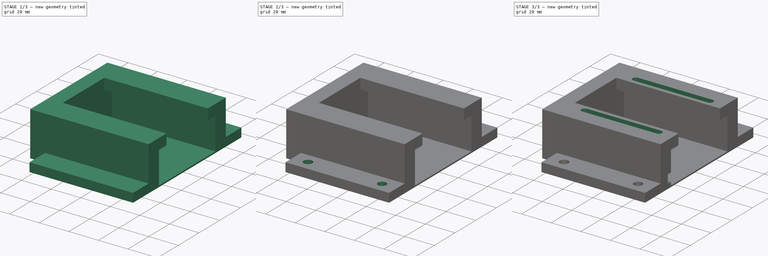
[diagram: build sequence overview — one tinted view per stage of 3, left to right]
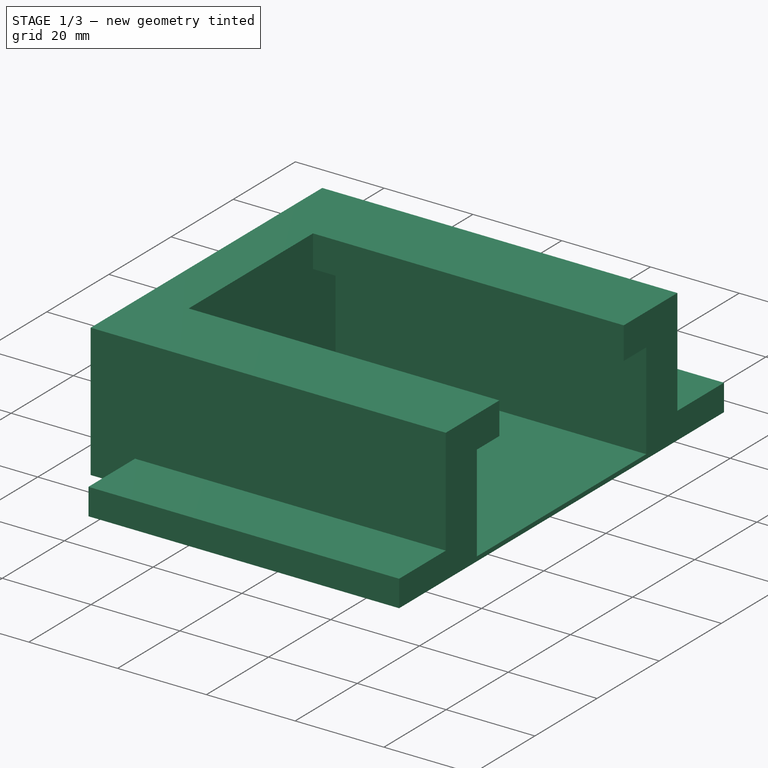
[diagram: stage 1 of 3 — iso view after this stage's code; geometry added in this stage tinted green]
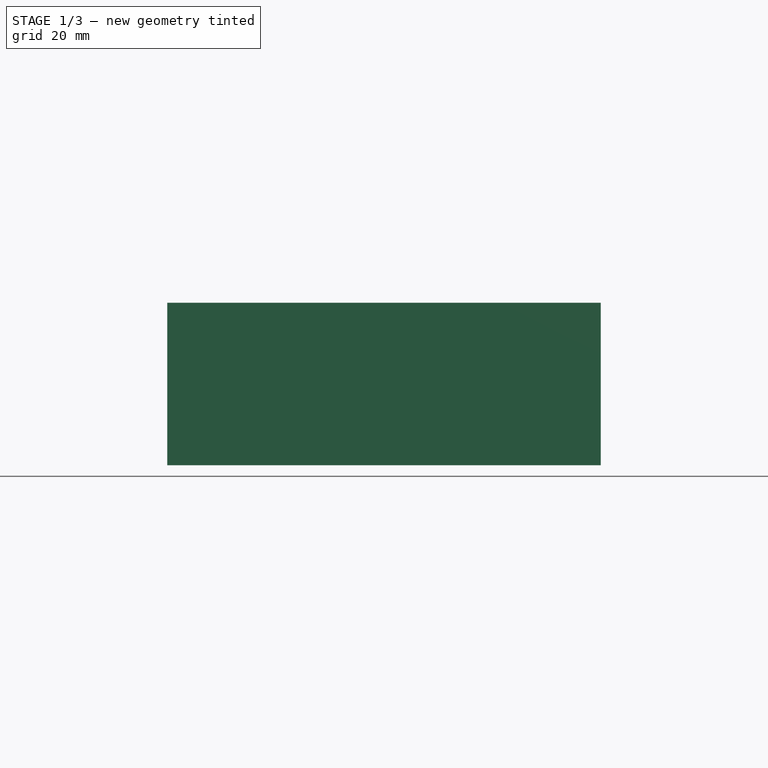
[diagram: stage 1 of 3 — front view after this stage's code; geometry added in this stage tinted green]
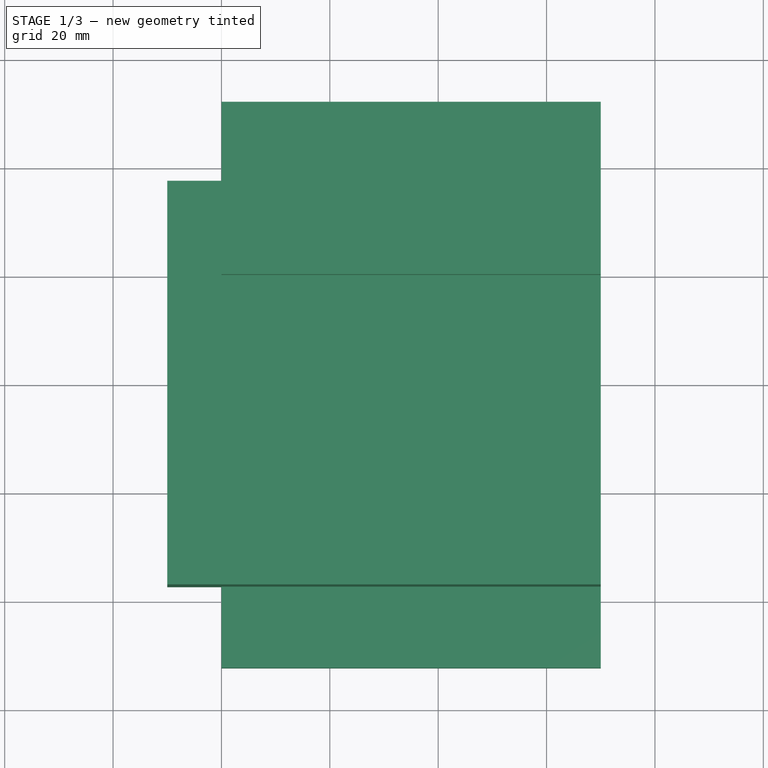
[diagram: stage 1 of 3 — top view after this stage's code; geometry added in this stage tinted green]
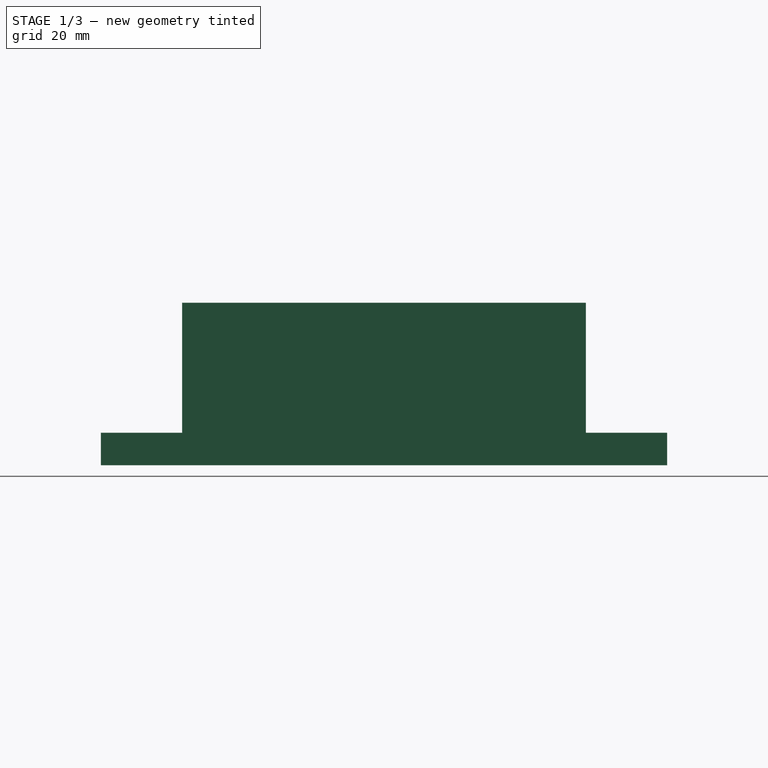
[diagram: stage 1 of 3 — right view after this stage's code; geometry added in this stage tinted green]
FCSTD DOCUMENT  (FreeCAD 1.0R39319 (Git))
Label: servo_holder
License: All rights reserved
LicenseURL: https://en.wikipedia.org/wiki/All_rights_reserved
objects: Sketcher::SketchObject×7, PartDesign::Pocket×4, PartDesign::Pad×2, Spreadsheet::Sheet×1, App::DocumentObjectGroup×1, PartDesign::Body×1
note: 33 computed .brp shape members not serialized (recipe doc carries the construction recipe); baked Part::Feature solids carry a one-line shape summary decoded from their .brp

FEATURE [Spreadsheet::Sheet] Spreadsheet  label="p"
  cells = A1='trough_d; B1(trough_d)==40 + 2 * B7; A2='trough_length; B2(trough_length)=70; A3='outer_flare_h; B3(outer_flare_h)=5; A4='inner_flare_h; B4(inner_flare_h)==B5 - B7; A5='total_h; B5(total_h)=29; A6='outer_flare_d; B6(outer_flare_d)=15; A7='inner_flare_d; B7(inner_flare_d)==(54.5 - 40) / 2; A8='hole_diam; B8(hole_diam)=4; A9='hole_spacing; B9(hole_spacing)=10; A10='wall_d; B10(wall_d)=10; A11='base_d; B11(base_d)=1; A12='rear_wall_d; B12(rear_wall_d)=10; A13='mount_clearance_diam; B13(mount_clearance_diam)=5; A14='slot_d; B14(slot_d)=49.5; A15='slot_width; B15(slot_width)=4.35; A16='wire_slot_d; B16(wire_slot_d)=3; A17='wire_slot_h; B17(wire_slot_h)=6; A18='wire_slot_offset; B18(wire_slot_offset)=2
FEATURE [Sketcher::SketchObject] Sketch
  ArcFitTolerance = 1e-06
  AttachmentSupport = -> [YZ_Plane]
  FullyConstrained = true
  MakeInternals = false
  MapMode = 5
  Placement = pos=(0,0,0) rot=(0.57735,0.57735,0.57735;2.0944rad)
  expr: Constraints[11] = <<p>>.wall_d
  expr: Constraints[12] = <<p>>.wall_d + <<p>>.inner_flare_d
  expr: Constraints[13] = <<p>>.wall_d + <<p>>.outer_flare_d
  expr: Constraints[14] = <<p>>.inner_flare_h
  expr: Constraints[15] = <<p>>.total_h
  expr: Constraints[16] = <<p>>.outer_flare_h
  expr: Constraints[18] = <<p>>.trough_d / 2
  expr: Constraints[30] = <<p>>.wall_d
  expr: Constraints[31] = <<p>>.outer_flare_d
  expr: Constraints[32] = <<p>>.outer_flare_h
  expr: Constraints[33] = <<p>>.inner_flare_h
  expr: Constraints[34] = <<p>>.inner_flare_d + <<p>>.wall_d
  expr: Constraints[35] = <<p>>.total_h
  expr: Constraints[37] = <<p>>.trough_d / 2
  sketch-geometry (20):
    g0: LineSegment StartX=-20 StartY=29 StartZ=0 EndX=-37.25 EndY=29 EndZ=0
    g1: LineSegment StartX=-37.25 StartY=29 StartZ=0 EndX=-37.25 EndY=5 EndZ=0
    g2: LineSegment StartX=-37.25 StartY=5 StartZ=0 EndX=-52.25 EndY=5 EndZ=0
    g3: LineSegment StartX=-52.25 StartY=5 StartZ=0 EndX=-52.25 EndY=0 EndZ=0
    g4: LineSegment StartX=-52.25 StartY=0 StartZ=0 EndX=-27.25 EndY=0 EndZ=0
    g5: LineSegment StartX=-27.25 StartY=0 StartZ=0 EndX=-27.25 EndY=21.75 EndZ=0
    g6: LineSegment StartX=52.25 StartY=0 StartZ=0 EndX=52.25 EndY=5 EndZ=0
    g7: LineSegment StartX=52.25 StartY=5 StartZ=0 EndX=37.25 EndY=5 EndZ=0
    g8: LineSegment StartX=37.25 StartY=5 StartZ=0 EndX=37.25 EndY=29 EndZ=0
    g9: LineSegment StartX=37.25 StartY=29 StartZ=0 EndX=20 EndY=29 EndZ=0
    g10: LineSegment StartX=27.25 StartY=21.75 StartZ=0 EndX=27.25 EndY=0 EndZ=0
    g11: LineSegment StartX=27.25 StartY=0 StartZ=0 EndX=52.25 EndY=0 EndZ=0
    g12: LineSegment StartX=-52.25 StartY=0 StartZ=0 EndX=-52.25 EndY=-1 EndZ=0
    g13: LineSegment StartX=-52.25 StartY=-1 StartZ=0 EndX=52.25 EndY=-1 EndZ=0
    g14: LineSegment StartX=52.25 StartY=-1 StartZ=0 EndX=52.25 EndY=0 EndZ=0
    g15: LineSegment StartX=52.25 StartY=0 StartZ=0 EndX=-52.25 EndY=0 EndZ=0
    g16: LineSegment StartX=-20 StartY=29 StartZ=0 EndX=-20 EndY=21.75 EndZ=0
    g17: LineSegment StartX=-20 StartY=21.75 StartZ=0 EndX=-27.25 EndY=21.75 EndZ=0
    g18: LineSegment StartX=20 StartY=29 StartZ=0 EndX=20 EndY=21.75 EndZ=0
    g19: LineSegment StartX=20 StartY=21.75 StartZ=0 EndX=27.25 EndY=21.75 EndZ=0
  constraints (59):
    c: Horizontal(g0)
    c: Coincident(g0,g1)
    c: Vertical(g1)
    c: Coincident(g1,g2)
    c: Horizontal(g2)
    c: Coincident(g2,g3)
    c: Vertical(g3)
    c: Coincident(g3,g4)
    c: Horizontal(g4)
    c: Coincident(g4,g5)
    c: Vertical(g5)
    c: DistanceX(g1,g5) = 10
    c: DistanceX(g0,g0) = 17.25
    c: DistanceX(g4,g4) = 25
    c: DistanceY(g5,g5) = 21.75
    c: DistanceY(g3,g0) = 29
    c: DistanceY(g3,g2) = 5
    c: DistanceY(g4,g-1) = 0
    c: DistanceX(g4,g-1) = 27.25
    c: Vertical(g6)
    c: Coincident(g6,g7)
    c: Horizontal(g7)
    c: Coincident(g7,g8)
    c: Vertical(g8)
    c: Coincident(g8,g9)
    c: Horizontal(g9)
    c: Vertical(g10)
    c: Coincident(g10,g11)
    c: Coincident(g11,g6)
    c: Horizontal(g11)
    c: DistanceX(g10,g7) = 10
    c: DistanceX(g7,g7) = 15
    c: DistanceY(g6,g6) = 5
    c: DistanceY(g10,g10) = 21.75
    c: DistanceX(g9,g9) = 17.25
    c: DistanceY(g6,g8) = 29
    c: DistanceY(g-1,g10) = 0
    c: DistanceX(g-1,g10) = 27.25
    c: Coincident(g12,g13)
    c: Coincident(g13,g14)
    c: Coincident(g14,g15)
    c: Coincident(g15,g12)
    c: Vertical(g12)
    c: Vertical(g14)
    c: Horizontal(g13)
    c: Horizontal(g15)
    c: Coincident(g12,g3)
    c: DistanceX(g13,g6) = 0
    c: DistanceY(g13,g6) = 1
    c: Coincident(g0,g16)
    c: Vertical(g16)
    c: Coincident(g17,g16)
    c: Coincident(g17,g5)
    c: Horizontal(g17)
    c: Coincident(g9,g18)
    c: Vertical(g18)
    c: Coincident(g18,g19)
    c: Coincident(g19,g10)
    c: Horizontal(g19)
FEATURE [PartDesign::Pad] Pad
  Direction = (1,0,0)
  Length = 70
  Length2 = 10
  Placement = pos=(0,0,0) rot=(1,1,1;2.0944rad)
  Profile = -> Sketch
  ReferenceAxis = -> Sketch [N_Axis]
  Refine = true
  Suppressed = false
  Type = 0
  expr: Length = <<p>>.trough_length
FEATURE [Sketcher::SketchObject] Sketch001
  ArcFitTolerance = 1e-06
  AttachmentSupport = -> [YZ_Plane]
  FullyConstrained = true
  MakeInternals = false
  MapMode = 5
  Placement = pos=(0,0,0) rot=(0.57735,0.57735,0.57735;2.0944rad)
  expr: Constraints[10] = <<p>>.trough_d + 2 * <<p>>.wall_d
  expr: Constraints[11] = <<p>>.total_h + <<p>>.base_d
  expr: Constraints[8] = -<<p>>.base_d
  expr: Constraints[9] = <<p>>.trough_d / 2 + <<p>>.wall_d
  sketch-geometry (4):
    g0: LineSegment StartX=-37.25 StartY=29 StartZ=0 EndX=-37.25 EndY=-1 EndZ=0
    g1: LineSegment StartX=-37.25 StartY=-1 StartZ=0 EndX=37.25 EndY=-1 EndZ=0
    g2: LineSegment StartX=37.25 StartY=-1 StartZ=0 EndX=37.25 EndY=29 EndZ=0
    g3: LineSegment StartX=37.25 StartY=29 StartZ=0 EndX=-37.25 EndY=29 EndZ=0
  constraints (12):
    c: Coincident(g0,g1)
    c: Coincident(g1,g2)
    c: Coincident(g2,g3)
    c: Coincident(g3,g0)
    c: Vertical(g0)
    c: Vertical(g2)
    c: Horizontal(g1)
    c: Horizontal(g3)
    c: DistanceY(g-1,g1) = -1
    c: DistanceX(g-1,g1) = 37.25
    c: DistanceX(g3,g3) = 74.5
    c: DistanceY(g0,g0) = 30
FEATURE [PartDesign::Pad] Pad001
  BaseFeature = -> Pad
  Direction = (-1,0,0)
  Length = 10
  Length2 = 10
  Placement = pos=(0,0,0) rot=(1,1,1;2.0944rad)
  Profile = -> Sketch001
  ReferenceAxis = -> Sketch001 [N_Axis]
  Refine = true
  Suppressed = false
  Type = 0
  UseCustomVector = true
  expr: Length = <<p>>.rear_wall_d
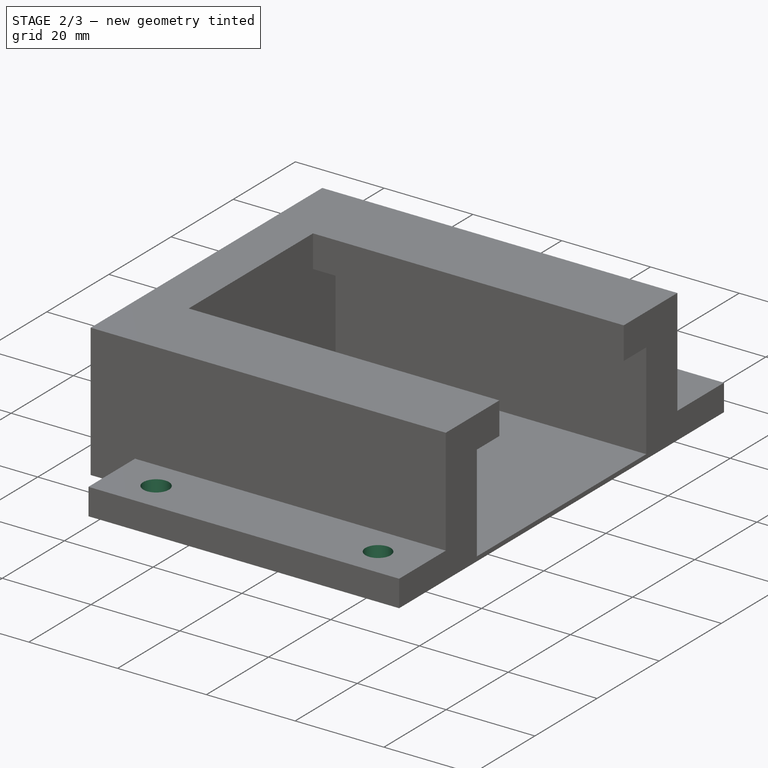
[diagram: stage 2 of 3 — iso view after this stage's code; geometry added in this stage tinted green]
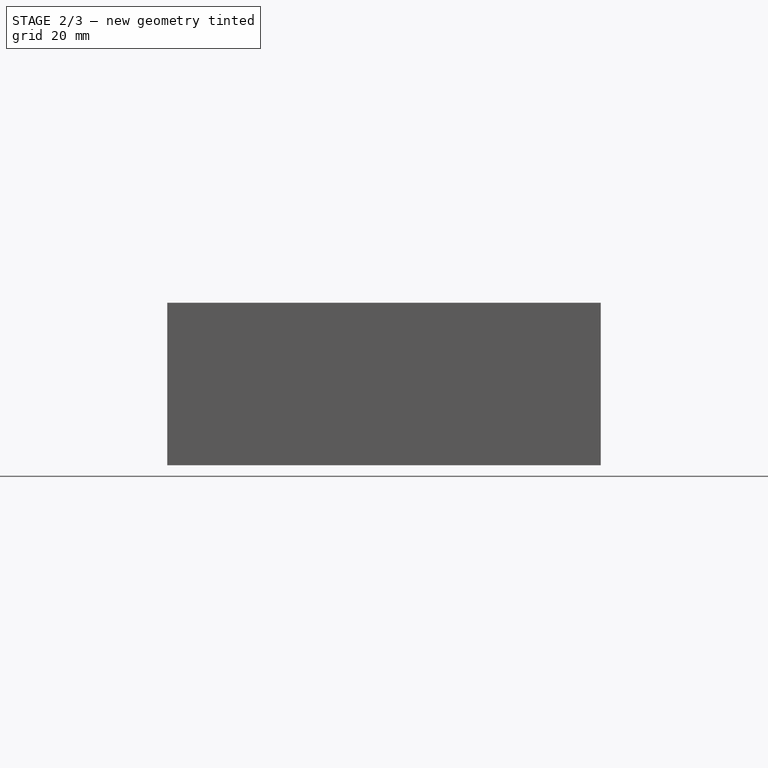
[diagram: stage 2 of 3 — front view after this stage's code; geometry added in this stage tinted green]
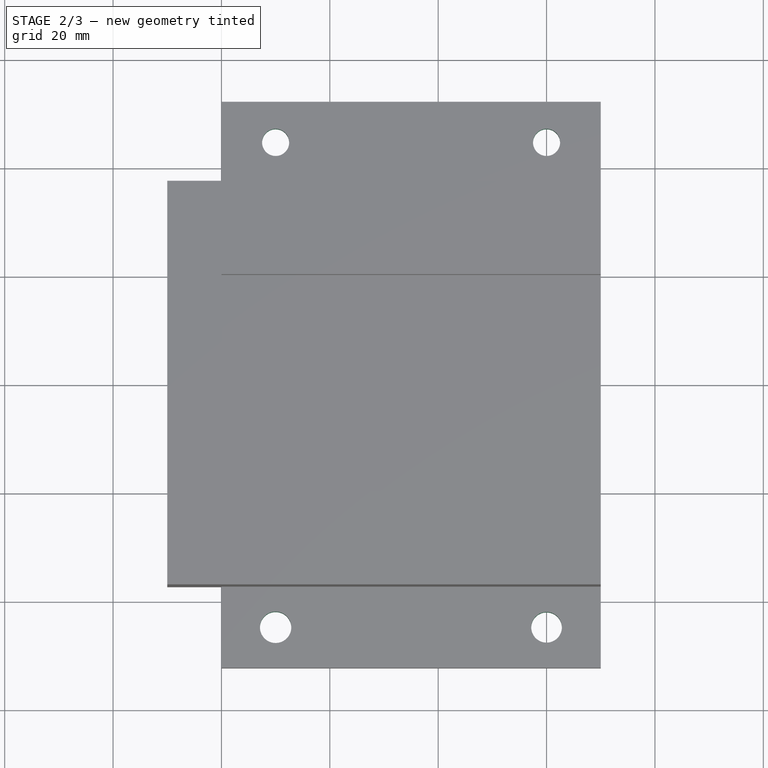
[diagram: stage 2 of 3 — top view after this stage's code; geometry added in this stage tinted green]
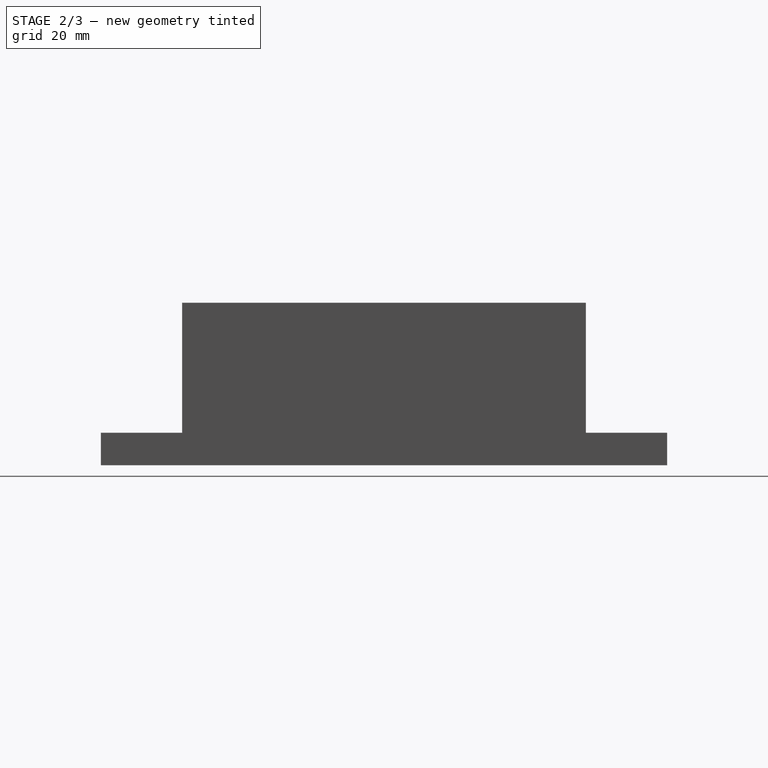
[diagram: stage 2 of 3 — right view after this stage's code; geometry added in this stage tinted green]
FEATURE [App::DocumentObjectGroup] Measurements
FEATURE [Sketcher::SketchObject] Sketch002
  ArcFitTolerance = 1e-06
  AttachmentSupport = -> [Pad001]
  FullyConstrained = true
  MakeInternals = false
  MapMode = 5
  Placement = pos=(-2.2e-15,2.2e-15,5) rot=(0,0,-1;1.5708rad)
FEATURE [Sketcher::SketchObject] Sketch003
  ArcFitTolerance = 1e-06
  AttachmentSupport = -> [Pad001]
  FullyConstrained = true
  MakeInternals = false
  MapMode = 5
  Placement = pos=(-2.2e-15,2.2e-15,5) rot=(0,0,-1;1.5708rad)
  expr: Constraints[0] = <<p>>.trough_d / 2 + <<p>>.wall_d + <<p>>.outer_flare_d / 2
  expr: Constraints[2] = 10
  expr: Constraints[3] = <<p>>.trough_length - 20
  expr: Constraints[4] = <<p>>.mount_clearance_diam
  expr: Constraints[5] = <<p>>.mount_clearance_diam
  sketch-geometry (2):
    g0: Circle CenterX=-44.75 CenterY=60 CenterZ=0 NormalX=0 NormalY=0 NormalZ=1 AngleXU=0 Radius=2.5
    g1: Circle CenterX=-44.75 CenterY=10 CenterZ=0 NormalX=0 NormalY=0 NormalZ=1 AngleXU=0 Radius=2.5
  constraints (6):
    c: DistanceX(g0,g-1) = 44.75
    c: DistanceX(g1,g0) = 0
    c: DistanceY(g-1,g1) = 10
    c: DistanceY(g1,g0) = 50
    c: Diameter(g0) = 5
    c: Diameter(g1) = 5
FEATURE [PartDesign::Pocket] Pocket
  BaseFeature = -> Pad001
  Direction = (0,0,-1)
  Length = 6
  Length2 = 5
  Placement = pos=(0,0,0) rot=(1,1,1;2.0944rad)
  Profile = -> Sketch003
  ReferenceAxis = -> Sketch003 [N_Axis]
  Refine = true
  Suppressed = false
  Type = 0
  expr: Length = <<p>>.outer_flare_h + 1
FEATURE [Sketcher::SketchObject] Sketch004
  ArcFitTolerance = 1e-06
  AttachmentSupport = -> [Pocket]
  FullyConstrained = false
  MakeInternals = false
  MapMode = 5
  Placement = pos=(-3.9e-15,2.8e-15,5) rot=(0,0,-1;1.5708rad)
  expr: Constraints[1] = <<p>>.trough_d / 2 + <<p>>.wall_d + <<p>>.outer_flare_d / 2
  expr: Constraints[3] = <<p>>.trough_length - 20
  sketch-geometry (2):
    g0: Circle CenterX=44.75 CenterY=60 CenterZ=0 NormalX=0 NormalY=0 NormalZ=1 AngleXU=0 Radius=2.82626
    g1: Circle CenterX=44.75 CenterY=10 CenterZ=0 NormalX=0 NormalY=0 NormalZ=1 AngleXU=0 Radius=2.89198
  constraints (4):
    c: DistanceX(g0,g1) = 0
    c: DistanceX(g-1,g1) = 44.75
    c: DistanceY(g-1,g1) = 10
    c: DistanceY(g1,g0) = 50
FEATURE [PartDesign::Pocket] Pocket001
  BaseFeature = -> Pocket
  Direction = (0,0,-1)
  Length = 6
  Length2 = 5
  Placement = pos=(0,0,0) rot=(1,1,1;2.0944rad)
  Profile = -> Sketch004
  ReferenceAxis = -> Sketch004 [N_Axis]
  Refine = true
  Suppressed = false
  Type = 0
  expr: Length = <<p>>.outer_flare_h + 1
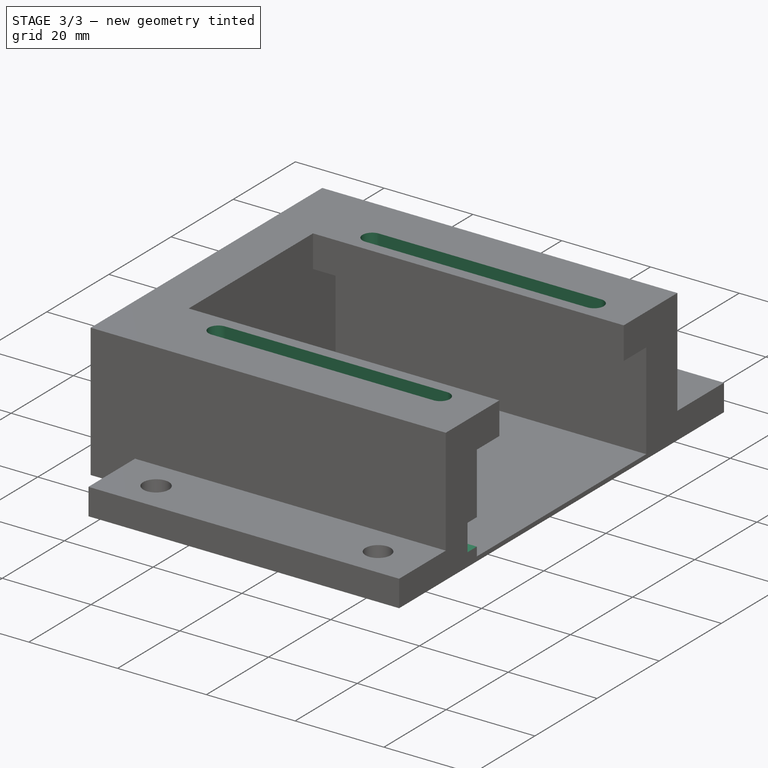
[diagram: stage 3 of 3 — iso view after this stage's code; geometry added in this stage tinted green]
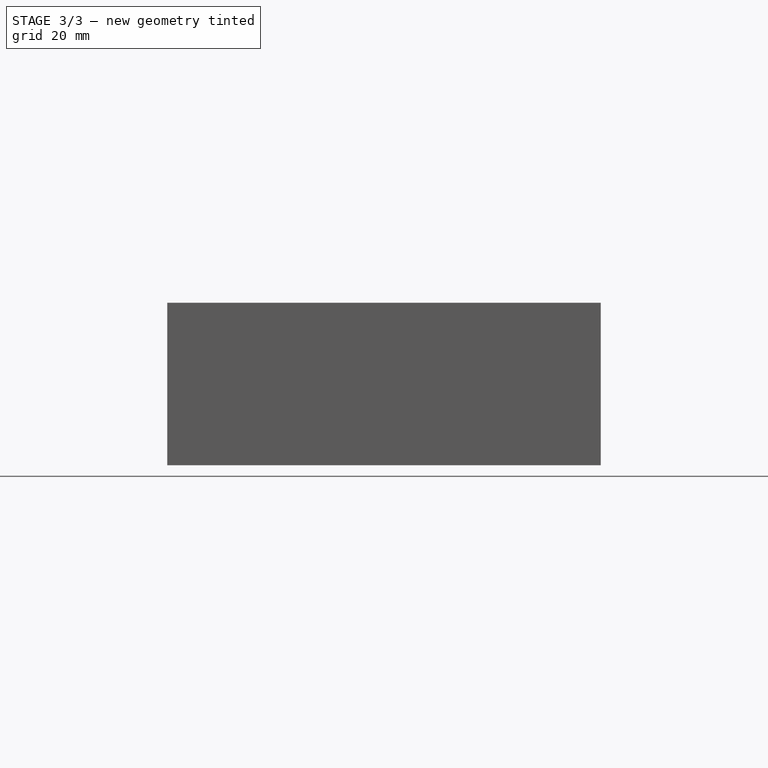
[diagram: stage 3 of 3 — front view after this stage's code; geometry added in this stage tinted green]
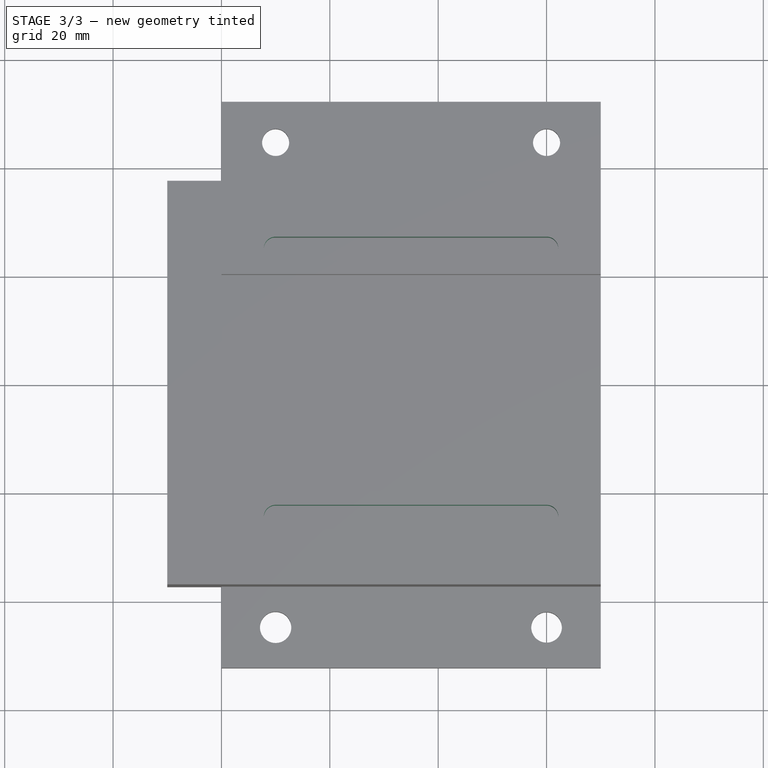
[diagram: stage 3 of 3 — top view after this stage's code; geometry added in this stage tinted green]
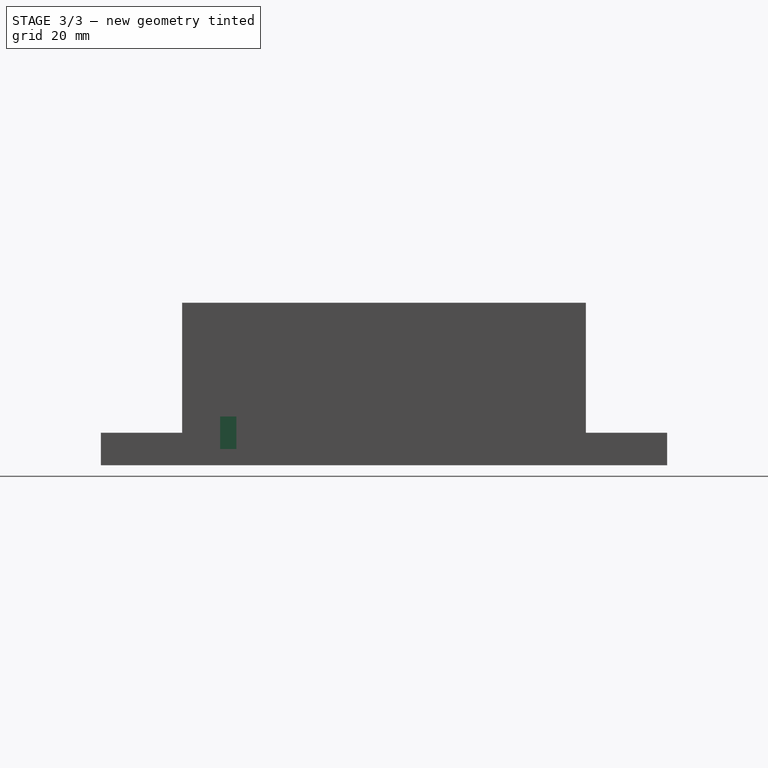
[diagram: stage 3 of 3 — right view after this stage's code; geometry added in this stage tinted green]
FEATURE [Sketcher::SketchObject] Sketch005
  ArcFitTolerance = 1e-06
  AttachmentSupport = -> [Pocket001]
  FullyConstrained = true
  MakeInternals = false
  MapMode = 5
  Placement = pos=(-2.25e-14,1.99e-14,29) rot=(0,0,-1;1.5708rad)
  expr: Constraints[12] = <<p>>.slot_d
  expr: Constraints[13] = <<p>>.slot_d / 2
  expr: Constraints[14] = <<p>>.slot_width
  expr: Constraints[15] = <<p>>.slot_width
  expr: Constraints[18] = <<p>>.trough_length - 20
  expr: Constraints[19] = 10
  sketch-geometry (8):
    g0: ArcOfCircle CenterX=-24.75 CenterY=10 CenterZ=0 NormalX=0 NormalY=0 NormalZ=1 AngleXU=0 Radius=2.175 StartAngle=3.14159 EndAngle=6.28319
    g1: ArcOfCircle CenterX=-24.75 CenterY=60 CenterZ=0 NormalX=0 NormalY=0 NormalZ=1 AngleXU=0 Radius=2.175 StartAngle=1.1e-15 EndAngle=3.14159
    g2: LineSegment StartX=-26.925 StartY=10 StartZ=0 EndX=-26.925 EndY=60 EndZ=0
    g3: LineSegment StartX=-22.575 StartY=10 StartZ=0 EndX=-22.575 EndY=60 EndZ=0
    g4: ArcOfCircle CenterX=24.75 CenterY=10 CenterZ=0 NormalX=0 NormalY=0 NormalZ=1 AngleXU=0 Radius=2.175 StartAngle=3.14159 EndAngle=6.28319
    g5: ArcOfCircle CenterX=24.75 CenterY=60 CenterZ=0 NormalX=0 NormalY=0 NormalZ=1 AngleXU=0 Radius=2.175 StartAngle=8e-16 EndAngle=3.14159
    g6: LineSegment StartX=22.575 StartY=10 StartZ=0 EndX=22.575 EndY=60 EndZ=0
    g7: LineSegment StartX=26.925 StartY=10 StartZ=0 EndX=26.925 EndY=60 EndZ=0
  constraints (20):
    c: Tangent(g0,g2) = 1.5708
    c: Tangent(g0,g3) = -1.5708
    c: Tangent(g1,g2) = 1.5708
    c: Tangent(g1,g3) = -1.5708
    c: Equal(g0,g1)
    c: Vertical(g3)
    c: Tangent(g4,g6) = 1.5708
    c: Tangent(g4,g7) = -1.5708
    c: Tangent(g5,g6) = 1.5708
    c: Tangent(g5,g7) = -1.5708
    c: Equal(g4,g5)
    c: Vertical(g7)
    c: DistanceX(g1,g5) = 49.5
    c: DistanceX(g1,g-1) = 24.75
    c: DistanceX(g1,g1) = 4.35
    c: DistanceX(g5,g5) = 4.35
    c: DistanceY(g4,g0) = 0
    c: DistanceY(g1,g5) = 0
    c: DistanceY(g0,g1) = 50
    c: DistanceY(g-1,g0) = 10
FEATURE [PartDesign::Pocket] Pocket002
  BaseFeature = -> Pocket001
  Direction = (0,0,-1)
  Length = 8.25
  Length2 = 5
  Placement = pos=(0,0,0) rot=(1,1,1;2.0944rad)
  Profile = -> Sketch005
  ReferenceAxis = -> Sketch005 [N_Axis]
  Refine = true
  Suppressed = false
  Type = 0
  expr: Length = <<p>>.total_h - <<p>>.inner_flare_h + 1
FEATURE [Sketcher::SketchObject] Sketch006
  ArcFitTolerance = 1e-06
  AttachmentSupport = -> [Pocket002]
  FullyConstrained = true
  MakeInternals = false
  MapMode = 5
  Placement = pos=(-6.1e-15,-27.25,3.93e-14) rot=(0.57735,0.57735,0.57735;4.18879rad)
  expr: Constraints[10] = <<p>>.wire_slot_offset
  expr: Constraints[8] = <<p>>.wire_slot_h
  expr: Constraints[9] = <<p>>.trough_length - 10
  sketch-geometry (4):
    g0: LineSegment StartX=2 StartY=70 StartZ=0 EndX=2 EndY=10 EndZ=0
    g1: LineSegment StartX=2 StartY=10 StartZ=0 EndX=8 EndY=10 EndZ=0
    g2: LineSegment StartX=8 StartY=10 StartZ=0 EndX=8 EndY=70 EndZ=0
    g3: LineSegment StartX=8 StartY=70 StartZ=0 EndX=2 EndY=70 EndZ=0
  constraints (12):
    c: Coincident(g0,g1)
    c: Coincident(g1,g2)
    c: Coincident(g2,g3)
    c: Coincident(g3,g0)
    c: Vertical(g0)
    c: Vertical(g2)
    c: Horizontal(g1)
    c: Horizontal(g3)
    c: DistanceX(g3,g3) = 6
    c: DistanceY(g2,g2) = 60
    c: DistanceX(g-1,g0) = 2
    c: DistanceY(g-1,g0) = 10
FEATURE [PartDesign::Pocket] Pocket003
  BaseFeature = -> Pocket002
  Direction = (0,-1,1.3e-15)
  Length = 3
  Length2 = 5
  Placement = pos=(0,0,0) rot=(1,1,1;2.0944rad)
  Profile = -> Sketch006
  ReferenceAxis = -> Sketch006 [N_Axis]
  Refine = true
  Suppressed = false
  Type = 0
  expr: Length = <<p>>.wire_slot_d
FEATURE [PartDesign::Body] Body
  AllowCompound = false
  Group = -> [Sketch,Pad,Sketch001,Pad001,Sketch002,Sketch003,Pocket,Sketch004,Pocket001,Sketch005,Pocket002,Sketch006,Pocket003]
  Origin = -> Origin
  Tip = -> Pocket003
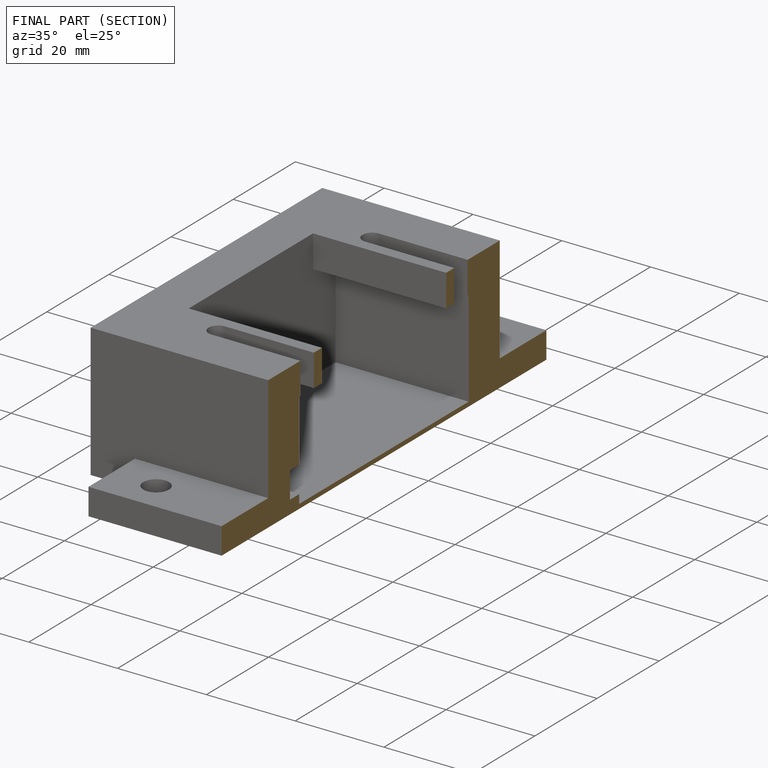
[diagram: finished part — half-section view (interior)]
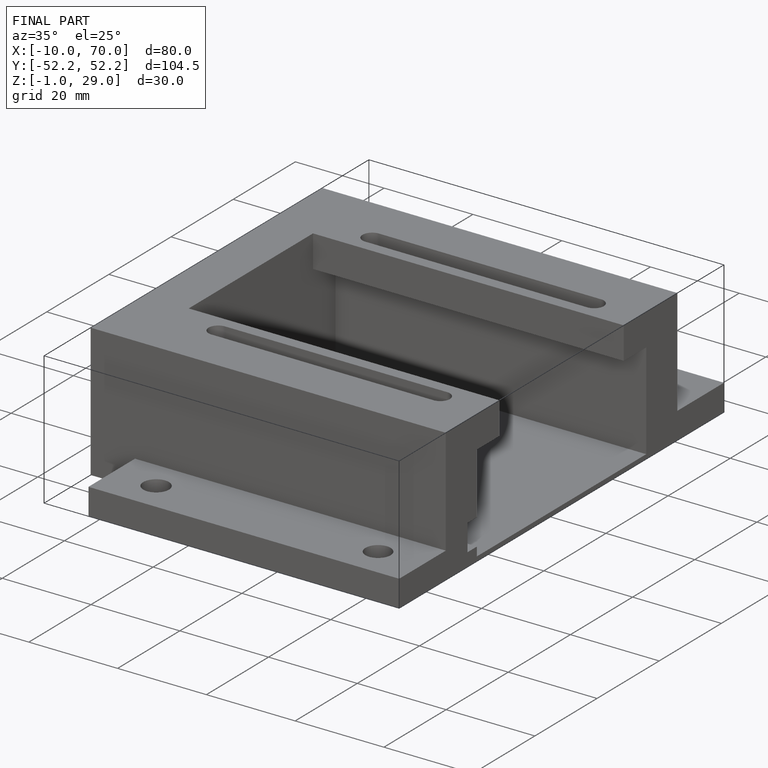
[diagram: finished part — iso view with bounding-box wireframe]
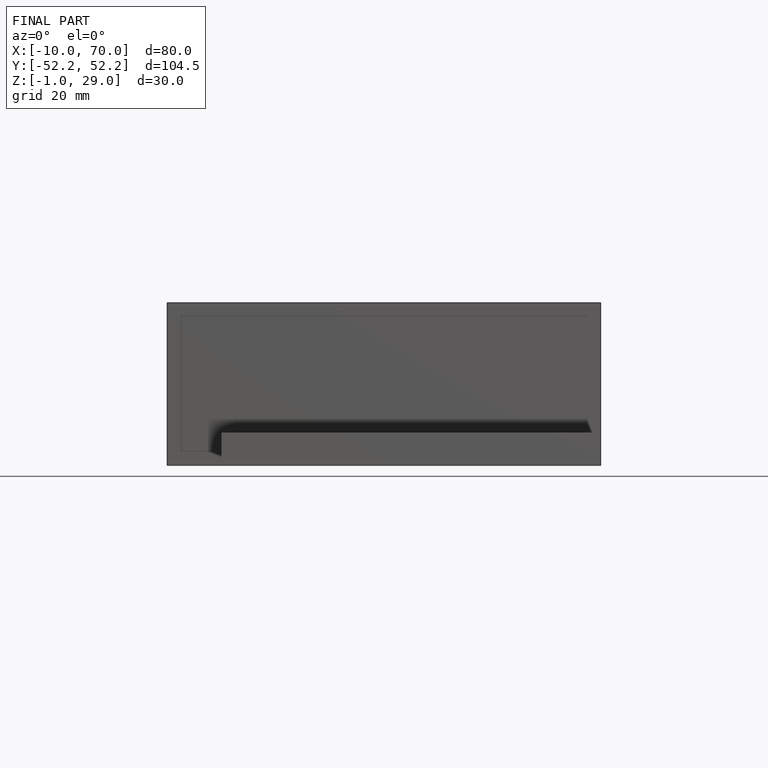
[diagram: finished part — front view with bounding-box wireframe]
